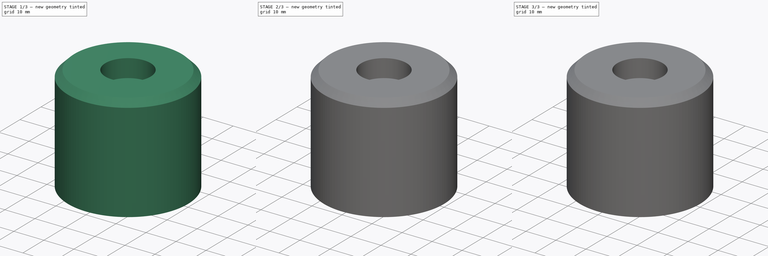
[diagram: build sequence overview — one tinted view per stage of 3, left to right]
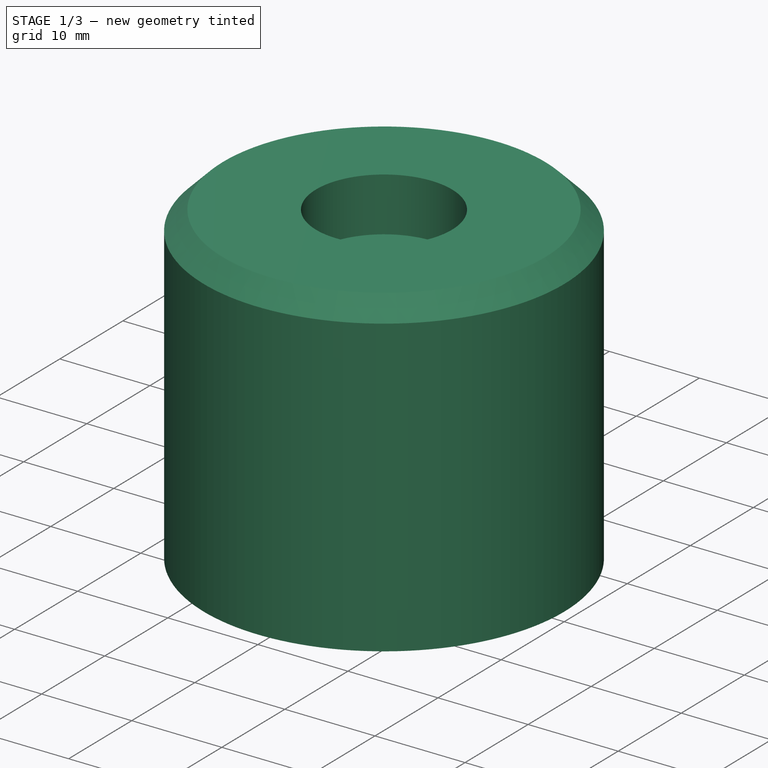
[diagram: stage 1 of 3 — iso view after this stage's code; geometry added in this stage tinted green]
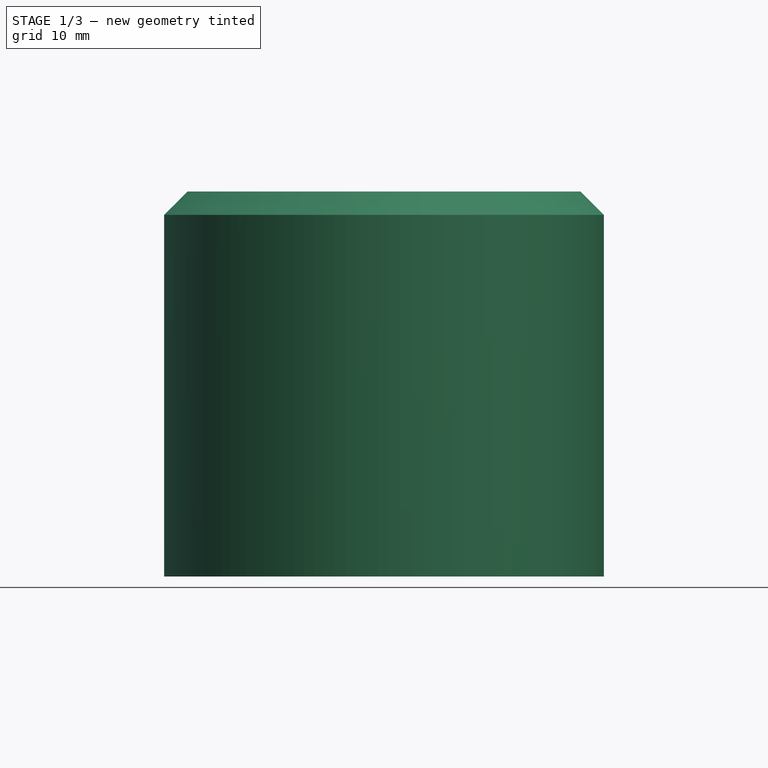
[diagram: stage 1 of 3 — front view after this stage's code; geometry added in this stage tinted green]
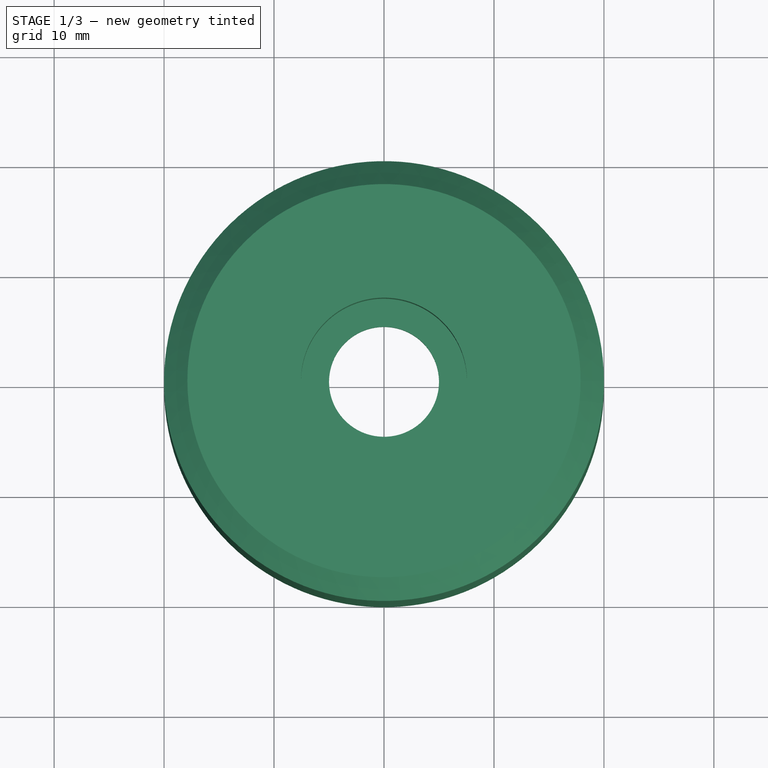
[diagram: stage 1 of 3 — top view after this stage's code; geometry added in this stage tinted green]
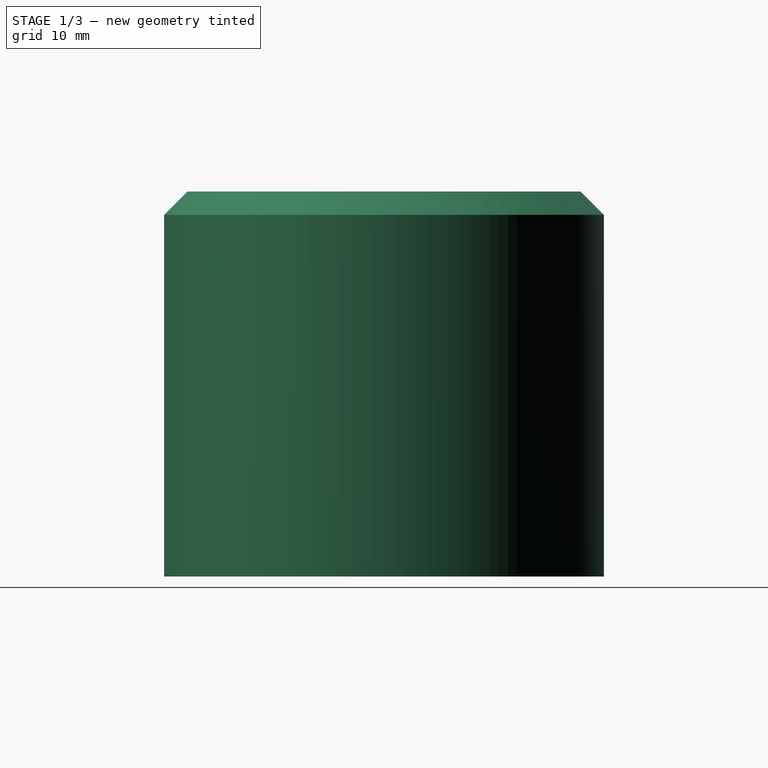
[diagram: stage 1 of 3 — right view after this stage's code; geometry added in this stage tinted green]
FCSTD DOCUMENT  (FreeCAD 0.19R24291 (Git))
Label: windDirectionSensorHousing
License: All rights reserved
LicenseURL: http://en.wikipedia.org/wiki/All_rights_reserved
objects: Sketcher::SketchObject×6, PartDesign::Pad×3, PartDesign::Pocket×2, PartDesign::Revolution×1, PartDesign::Plane×1, PartDesign::Chamfer×1, PartDesign::Body×1
note: 22 computed .brp shape members not serialized (recipe doc carries the construction recipe); baked Part::Feature solids carry a one-line shape summary decoded from their .brp

FEATURE [Sketcher::SketchObject] Sketch
  FullyConstrained = true
  MapMode = 5
  Placement = pos=(0,0,0) rot=(1,0,0;1.5708rad)
  Support = -> [XZ_Plane]
  sketch-geometry (16):
    g0: LineSegment StartX=5 StartY=29 StartZ=0 EndX=7.55 EndY=29 EndZ=0
    g1: LineSegment StartX=7.55 StartY=29 StartZ=0 EndX=7.55 EndY=35 EndZ=0
    g2: LineSegment StartX=7.55 StartY=35 StartZ=0 EndX=17.8787 EndY=35 EndZ=0
    g3: LineSegment StartX=17.8787 StartY=35 StartZ=0 EndX=20 EndY=32.8787 EndZ=0
    g4: LineSegment StartX=20 StartY=32.8787 StartZ=0 EndX=20 EndY=0 EndZ=0
    g5: LineSegment StartX=20 StartY=0 StartZ=0 EndX=18.5 EndY=0 EndZ=0
    g6: LineSegment StartX=18.5 StartY=0 StartZ=0 EndX=18.5 EndY=32.2574 EndZ=0
    g7: LineSegment StartX=18.5 StartY=32.2574 StartZ=0 EndX=17.2574 EndY=33.5 EndZ=0
    g8: LineSegment StartX=17.2574 StartY=33.5 StartZ=0 EndX=9.05 EndY=33.5 EndZ=0
    g9: LineSegment StartX=9.05 StartY=33.5 StartZ=0 EndX=9.05 EndY=27.5 EndZ=0
    g10: LineSegment StartX=9.05 StartY=27.5 StartZ=0 EndX=5 EndY=27.5 EndZ=0
    g11: LineSegment StartX=5 StartY=27.5 StartZ=0 EndX=5 EndY=29 EndZ=0
    g12: LineSegment StartX=7.55 StartY=29 StartZ=0 EndX=7.55 EndY=27.5 EndZ=0
    g13: LineSegment StartX=9.05 StartY=33.5 StartZ=0 EndX=7.55 EndY=33.5 EndZ=0
    g14: LineSegment StartX=9.05 StartY=33.5 StartZ=0 EndX=9.05 EndY=35 EndZ=0
    g15: LineSegment StartX=17.8787 StartY=32.8787 StartZ=0 EndX=18.9393 EndY=33.9393 EndZ=0
  constraints (49):
    c: Horizontal(g0)
    c: Coincident(g1,g0)
    c: Vertical(g1)
    c: Coincident(g2,g1)
    c: Horizontal(g2)
    c: Coincident(g3,g2)
    c: Coincident(g4,g3)
    c: Vertical(g4)
    c: Coincident(g5,g4)
    c: PointOnObject(g5,g-1)
    c: Horizontal(g5)
    c: Coincident(g6,g5)
    c: Vertical(g6)
    c: Coincident(g7,g6)
    c: Coincident(g8,g7)
    c: Horizontal(g8)
    c: Coincident(g9,g8)
    c: Vertical(g9)
    c: Coincident(g10,g9)
    c: Horizontal(g10)
    c: Coincident(g11,g10)
    c: Coincident(g11,g0)
    c: Vertical(g11)
    c: Parallel(g7,g3)
    c: DistanceY(g11,g11) = 1.5
    c: Coincident(g12,g0)
    c: PointOnObject(g12,g10)
    c: Vertical(g12)
    c: Coincident(g13,g8)
    c: PointOnObject(g13,g1)
    c: Horizontal(g13)
    c: Coincident(g14,g8)
    c: PointOnObject(g14,g2)
    c: Vertical(g14)
    c: PointOnObject(g15,g7)
    c: PointOnObject(g15,g3)
    c: Perpendicular(g3,g15)
    c: Equal(g12,g13)
    c: Equal(g13,g14)
    c: Equal(g14,g15)
    c: Equal(g15,g5)
    c: Angle(g7,g6) = 2.35619
    c: DistanceY(g1,g1) = 6
    c: DistanceX(g-1,g1) = 7.55
    c: DistanceX(g-1,g10) = 5
    c: DistanceX(g-1,g4) = 20
    c: DistanceY(g4,g2) = 35
    c: Distance(g3) = 3
    c: Distance(g3,g15) = 1.5
FEATURE [PartDesign::Revolution] Revolution
  Angle = 360
  Axis = (0,2e-16,1)
  Base = (0,0,0)
  Placement = pos=(0,0,0) rot=(1,0,0;1.5708rad)
  Profile = -> Sketch
  ReferenceAxis = -> Sketch [V_Axis]
  Reversed = true
FEATURE [Sketcher::SketchObject] Sketch001
  FullyConstrained = true
  MapMode = 5
  Placement = pos=(0,2.23e-14,33.5) rot=(1,0,0;3.14159rad)
  Support = -> [Revolution]
  sketch-geometry (20):
    g0: LineSegment StartX=-8.28 StartY=13.2 StartZ=0 EndX=-4.28 EndY=13.2 EndZ=0
    g1: LineSegment StartX=-4.28 StartY=13.2 StartZ=0 EndX=-4.28 EndY=9.2 EndZ=0
    g2: LineSegment StartX=-4.28 StartY=9.2 StartZ=0 EndX=-8.28 EndY=9.2 EndZ=0
    g3: LineSegment StartX=-8.28 StartY=9.2 StartZ=0 EndX=-8.28 EndY=13.2 EndZ=0
    g4: LineSegment StartX=6.82 StartY=13.2 StartZ=0 EndX=10.82 EndY=13.2 EndZ=0
    g5: LineSegment StartX=10.82 StartY=13.2 StartZ=0 EndX=10.82 EndY=9.2 EndZ=0
    g6: LineSegment StartX=10.82 StartY=9.2 StartZ=0 EndX=6.82 EndY=9.2 EndZ=0
    g7: LineSegment StartX=6.82 StartY=9.2 StartZ=0 EndX=6.82 EndY=13.2 EndZ=0
    g8: LineSegment StartX=-8.28 StartY=-9.2 StartZ=0 EndX=-4.28 EndY=-9.2 EndZ=0
    g9: LineSegment StartX=-4.28 StartY=-9.2 StartZ=0 EndX=-4.28 EndY=-13.2 EndZ=0
    g10: LineSegment StartX=-4.28 StartY=-13.2 StartZ=0 EndX=-8.28 EndY=-13.2 EndZ=0
    g11: LineSegment StartX=-8.28 StartY=-13.2 StartZ=0 EndX=-8.28 EndY=-9.2 EndZ=0
    g12: LineSegment StartX=6.82 StartY=-9.2 StartZ=0 EndX=10.82 EndY=-9.2 EndZ=0
    g13: LineSegment StartX=10.82 StartY=-9.2 StartZ=0 EndX=10.82 EndY=-13.2 EndZ=0
    g14: LineSegment StartX=10.82 StartY=-13.2 StartZ=0 EndX=6.82 EndY=-13.2 EndZ=0
    g15: LineSegment StartX=6.82 StartY=-13.2 StartZ=0 EndX=6.82 EndY=-9.2 EndZ=0
    g16: LineSegment StartX=-4.28 StartY=13.2 StartZ=0 EndX=6.82 EndY=13.2 EndZ=0
    g17: LineSegment StartX=10.82 StartY=9.2 StartZ=0 EndX=10.82 EndY=-9.2 EndZ=0
    g18: LineSegment StartX=6.82 StartY=-13.2 StartZ=0 EndX=-4.28 EndY=-13.2 EndZ=0
    g19: LineSegment StartX=-8.28 StartY=9.2 StartZ=0 EndX=-8.28 EndY=-9.2 EndZ=0
  constraints (55):
    c: Coincident(g0,g1)
    c: Coincident(g1,g2)
    c: Coincident(g2,g3)
    c: Coincident(g3,g0)
    c: Horizontal(g0)
    c: Horizontal(g2)
    c: Vertical(g1)
    c: Vertical(g3)
    c: Equal(g0,g1)
    c: DistanceX(g0,g0) = 4
    c: Coincident(g4,g5)
    c: Coincident(g5,g6)
    c: Coincident(g6,g7)
    c: Coincident(g7,g4)
    c: Horizontal(g4)
    c: Horizontal(g6)
    c: Vertical(g5)
    c: Vertical(g7)
    c: Equal(g4,g5)
    c: Equal(g0,g4) = 4
    c: Coincident(g8,g9)
    c: Coincident(g9,g10)
    c: Coincident(g10,g11)
    c: Coincident(g11,g8)
    c: Horizontal(g8)
    c: Horizontal(g10)
    c: Vertical(g9)
    c: Vertical(g11)
    c: Equal(g8,g9)
    c: Equal(g0,g8) = 4
    c: Coincident(g12,g13)
    c: Coincident(g13,g14)
    c: Coincident(g14,g15)
    c: Coincident(g15,g12)
    c: Horizontal(g12)
    c: Horizontal(g14)
    c: Vertical(g13)
    c: Vertical(g15)
    c: Equal(g12,g13)
    c: Equal(g0,g12) = 4
    c: Coincident(g16,g0)
    c: Coincident(g16,g4)
    c: Horizontal(g16)
    c: Coincident(g17,g5)
    c: Coincident(g17,g12)
    c: Coincident(g18,g14)
    c: Coincident(g18,g9)
    c: Horizontal(g18)
    c: Coincident(g19,g2)
    c: Coincident(g19,g8)
    c: Vertical(g19)
    c: DistanceX(g16,g16) = 11.1
    c: DistanceY(g17,g17) = 18.4
    c: Symmetric(g5,g12,g-1)
    c: DistanceX(g1,g-1) = 4.28
FEATURE [PartDesign::Pad] Pad
  BaseFeature = -> Revolution
  Direction = (1,1,1)
  Length = 17.5
  Length2 = 100
  Placement = pos=(0,0,0) rot=(1,0,0;1.5708rad)
  Profile = -> Sketch001
  Type = 0
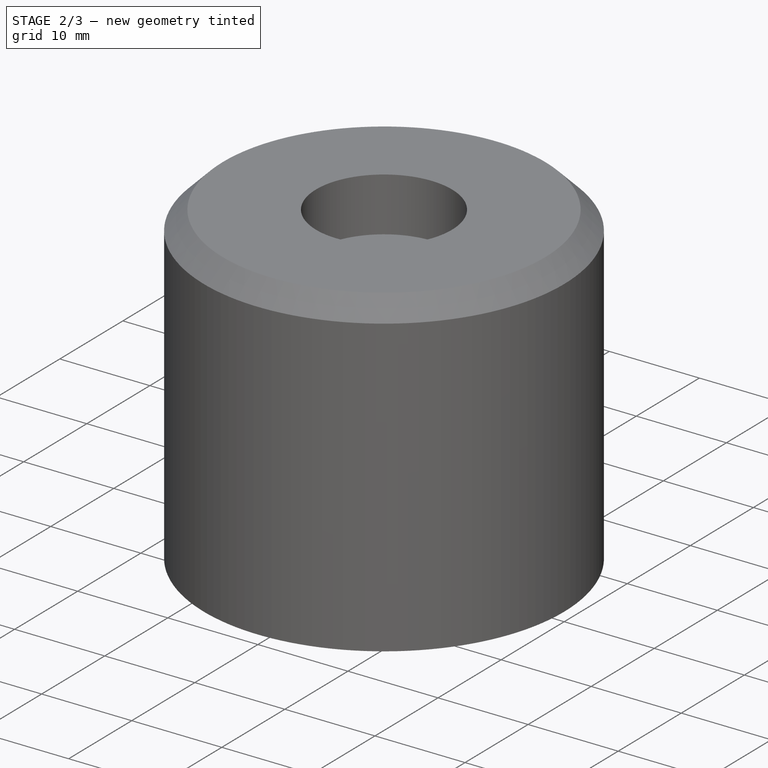
[diagram: stage 2 of 3 — iso view after this stage's code; geometry added in this stage tinted green]
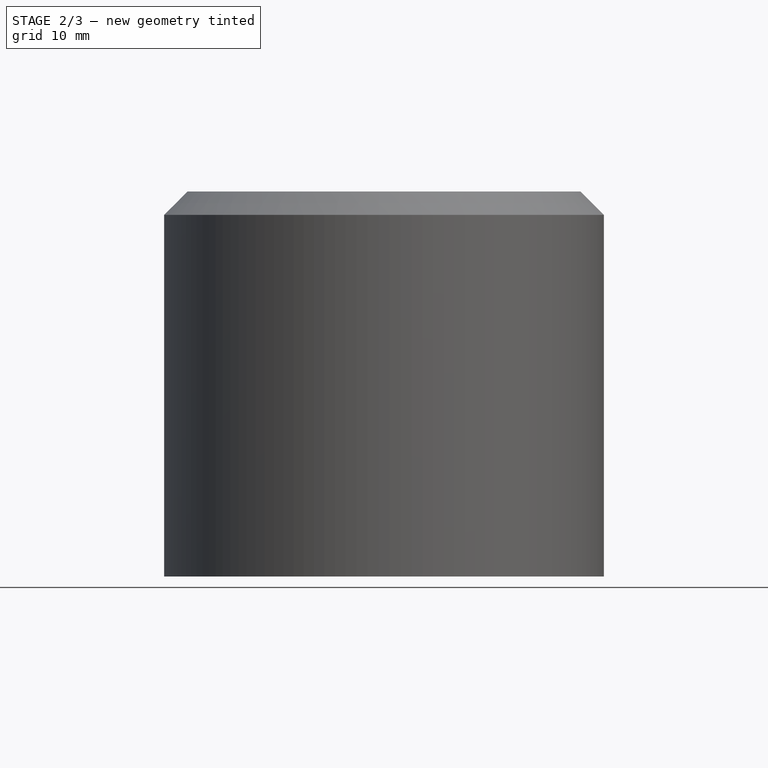
[diagram: stage 2 of 3 — front view after this stage's code; geometry added in this stage tinted green]
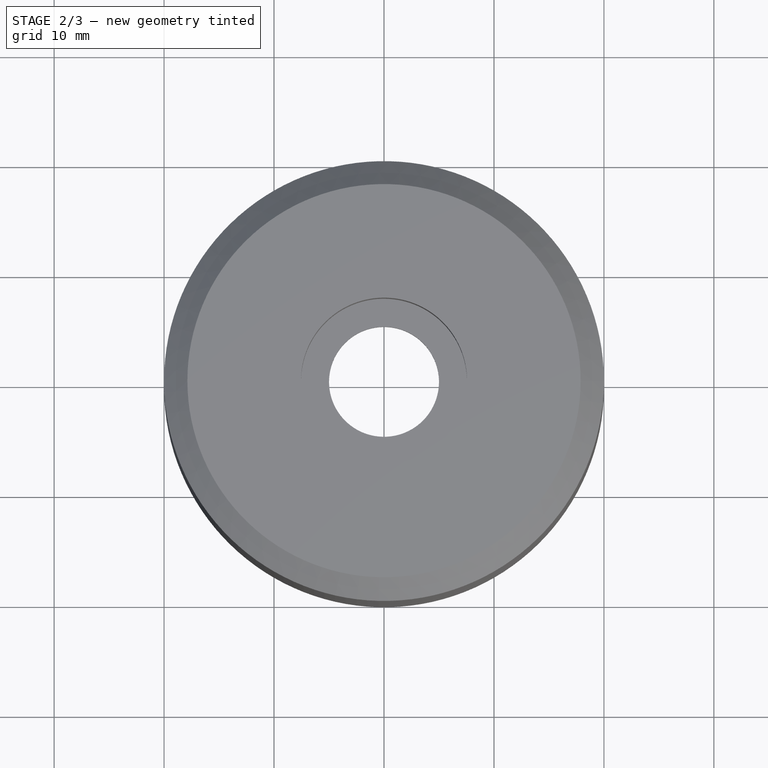
[diagram: stage 2 of 3 — top view after this stage's code; geometry added in this stage tinted green]
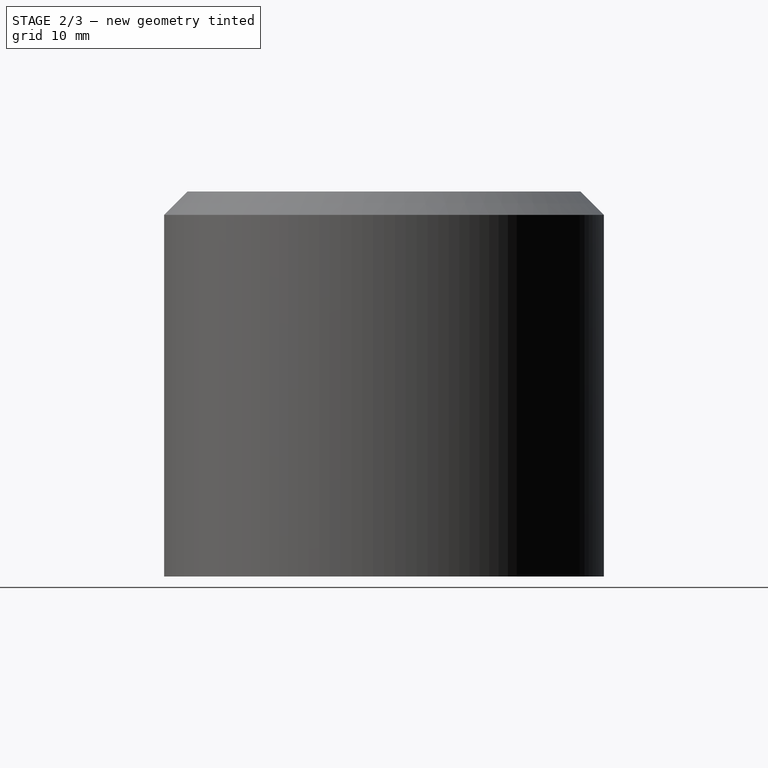
[diagram: stage 2 of 3 — right view after this stage's code; geometry added in this stage tinted green]
FEATURE [Sketcher::SketchObject] Sketch002
  FullyConstrained = true
  MapMode = 5
  Placement = pos=(0,7.1e-15,16) rot=(1,0,0;3.14159rad)
  Support = -> [Pad]
  sketch-geometry (20):
    g0: LineSegment StartX=-4.28 StartY=9.2 StartZ=0 EndX=-6.28 EndY=9.2 EndZ=0
    g1: LineSegment StartX=-6.28 StartY=9.2 StartZ=0 EndX=-6.28 EndY=11.2 EndZ=0
    g2: LineSegment StartX=-6.28 StartY=11.2 StartZ=0 EndX=-4.28 EndY=11.2 EndZ=0
    g3: LineSegment StartX=-4.28 StartY=11.2 StartZ=0 EndX=-4.28 EndY=9.2 EndZ=0
    g4: LineSegment StartX=-4.28 StartY=-11.2 StartZ=0 EndX=-6.28 EndY=-11.2 EndZ=0
    g5: LineSegment StartX=-6.28 StartY=-11.2 StartZ=0 EndX=-6.28 EndY=-9.2 EndZ=0
    g6: LineSegment StartX=-6.28 StartY=-9.2 StartZ=0 EndX=-4.28 EndY=-9.2 EndZ=0
    g7: LineSegment StartX=-4.28 StartY=-9.2 StartZ=0 EndX=-4.28 EndY=-11.2 EndZ=0
    g8: LineSegment StartX=8.82 StartY=9.2 StartZ=0 EndX=6.82 EndY=9.2 EndZ=0
    g9: LineSegment StartX=6.82 StartY=9.2 StartZ=0 EndX=6.82 EndY=11.2 EndZ=0
    g10: LineSegment StartX=6.82 StartY=11.2 StartZ=0 EndX=8.82 EndY=11.2 EndZ=0
    g11: LineSegment StartX=8.82 StartY=11.2 StartZ=0 EndX=8.82 EndY=9.2 EndZ=0
    g12: LineSegment StartX=8.82 StartY=-11.2 StartZ=0 EndX=6.82 EndY=-11.2 EndZ=0
    g13: LineSegment StartX=6.82 StartY=-11.2 StartZ=0 EndX=6.82 EndY=-9.2 EndZ=0
    g14: LineSegment StartX=6.82 StartY=-9.2 StartZ=0 EndX=8.82 EndY=-9.2 EndZ=0
    g15: LineSegment StartX=8.82 StartY=-9.2 StartZ=0 EndX=8.82 EndY=-11.2 EndZ=0
    g16: LineSegment StartX=-4.28 StartY=9.2 StartZ=0 EndX=-4.28 EndY=-9.2 EndZ=0
    g17: LineSegment StartX=-4.28 StartY=9.2 StartZ=0 EndX=6.82 EndY=9.2 EndZ=0
    g18: LineSegment StartX=6.82 StartY=9.2 StartZ=0 EndX=6.82 EndY=-9.2 EndZ=0
    g19: LineSegment StartX=6.82 StartY=-9.2 StartZ=0 EndX=-4.28 EndY=-9.2 EndZ=0
  constraints (55):
    c: Coincident(g0,g1)
    c: Coincident(g1,g2)
    c: Coincident(g2,g3)
    c: Coincident(g3,g0)
    c: Horizontal(g0)
    c: Horizontal(g2)
    c: Vertical(g1)
    c: Vertical(g3)
    c: Equal(g2,g3)
    c: DistanceX(g2,g2) = 2
    c: Coincident(g4,g5)
    c: Coincident(g5,g6)
    c: Coincident(g6,g7)
    c: Coincident(g7,g4)
    c: Horizontal(g4)
    c: Horizontal(g6)
    c: Vertical(g5)
    c: Vertical(g7)
    c: Equal(g6,g7)
    c: Equal(g2,g6) = 2
    c: Coincident(g8,g9)
    c: Coincident(g9,g10)
    c: Coincident(g10,g11)
    c: Coincident(g11,g8)
    c: Horizontal(g8)
    c: Horizontal(g10)
    c: Vertical(g9)
    c: Vertical(g11)
    c: Equal(g10,g11)
    c: Equal(g2,g10) = 2
    c: Coincident(g12,g13)
    c: Coincident(g13,g14)
    c: Coincident(g14,g15)
    c: Coincident(g15,g12)
    c: Horizontal(g12)
    c: Horizontal(g14)
    c: Vertical(g13)
    c: Vertical(g15)
    c: Equal(g14,g15)
    c: Equal(g2,g14) = 2
    c: Coincident(g16,g0)
    c: Coincident(g16,g6)
    c: Vertical(g16)
    c: Coincident(g17,g0)
    c: Coincident(g17,g8)
    c: Horizontal(g17)
    c: Coincident(g18,g8)
    c: Coincident(g18,g13)
    c: Coincident(g19,g13)
    c: Horizontal(g19)
    c: Coincident(g19,g6)
    c: DistanceY(g18,g18) = 18.4
    c: DistanceX(g17,g17) = 11.1
    c: Symmetric(g8,g13,g-1)
    c: DistanceX(g0,g-1) = 4.28
FEATURE [PartDesign::Pocket] Pocket
  BaseFeature = -> Pad
  Length = 2
  Length2 = 100
  Placement = pos=(0,0,0) rot=(1,0,0;1.5708rad)
  Profile = -> Sketch002
  Type = 0
FEATURE [Sketcher::SketchObject] Sketch003
  FullyConstrained = true
  MapMode = 5
  Placement = pos=(0,1.42e-14,16) rot=(1,0,0;3.14159rad)
  Support = -> [Pocket]
  sketch-geometry (20):
    g0: LineSegment StartX=-8.28 StartY=13.2 StartZ=0 EndX=-4.28 EndY=13.2 EndZ=0
    g1: LineSegment StartX=-4.28 StartY=13.2 StartZ=0 EndX=-4.28 EndY=9.2 EndZ=0
    g2: LineSegment StartX=-4.28 StartY=9.2 StartZ=0 EndX=-8.28 EndY=9.2 EndZ=0
    g3: LineSegment StartX=-8.28 StartY=9.2 StartZ=0 EndX=-8.28 EndY=13.2 EndZ=0
    g4: LineSegment StartX=6.82 StartY=13.2 StartZ=0 EndX=10.82 EndY=13.2 EndZ=0
    g5: LineSegment StartX=10.82 StartY=13.2 StartZ=0 EndX=10.82 EndY=9.2 EndZ=0
    g6: LineSegment StartX=10.82 StartY=9.2 StartZ=0 EndX=6.82 EndY=9.2 EndZ=0
    g7: LineSegment StartX=6.82 StartY=9.2 StartZ=0 EndX=6.82 EndY=13.2 EndZ=0
    g8: LineSegment StartX=-8.28 StartY=-9.2 StartZ=0 EndX=-4.28 EndY=-9.2 EndZ=0
    g9: LineSegment StartX=-4.28 StartY=-9.2 StartZ=0 EndX=-4.28 EndY=-13.2 EndZ=0
    g10: LineSegment StartX=-4.28 StartY=-13.2 StartZ=0 EndX=-8.28 EndY=-13.2 EndZ=0
    g11: LineSegment StartX=-8.28 StartY=-13.2 StartZ=0 EndX=-8.28 EndY=-9.2 EndZ=0
    g12: LineSegment StartX=6.82 StartY=-9.2 StartZ=0 EndX=10.82 EndY=-9.2 EndZ=0
    g13: LineSegment StartX=10.82 StartY=-9.2 StartZ=0 EndX=10.82 EndY=-13.2 EndZ=0
    g14: LineSegment StartX=10.82 StartY=-13.2 StartZ=0 EndX=6.82 EndY=-13.2 EndZ=0
    g15: LineSegment StartX=6.82 StartY=-13.2 StartZ=0 EndX=6.82 EndY=-9.2 EndZ=0
    g16: LineSegment StartX=-4.28 StartY=9.2 StartZ=0 EndX=-4.28 EndY=-9.2 EndZ=0
    g17: LineSegment StartX=-4.28 StartY=9.2 StartZ=0 EndX=6.82 EndY=9.2 EndZ=0
    g18: LineSegment StartX=6.82 StartY=9.2 StartZ=0 EndX=6.82 EndY=-9.2 EndZ=0
    g19: LineSegment StartX=6.82 StartY=-9.2 StartZ=0 EndX=-4.28 EndY=-9.2 EndZ=0
  constraints (55):
    c: Coincident(g0,g1)
    c: Coincident(g1,g2)
    c: Coincident(g2,g3)
    c: Coincident(g3,g0)
    c: Horizontal(g0)
    c: Horizontal(g2)
    c: Vertical(g1)
    c: Vertical(g3)
    c: Equal(g0,g1)
    c: DistanceX(g0,g0) = 4
    c: Coincident(g4,g5)
    c: Coincident(g5,g6)
    c: Coincident(g6,g7)
    c: Coincident(g7,g4)
    c: Horizontal(g4)
    c: Horizontal(g6)
    c: Vertical(g5)
    c: Vertical(g7)
    c: Equal(g4,g5)
    c: Equal(g0,g4) = 4
    c: Coincident(g8,g9)
    c: Coincident(g9,g10)
    c: Coincident(g10,g11)
    c: Coincident(g11,g8)
    c: Horizontal(g8)
    c: Horizontal(g10)
    c: Vertical(g9)
    c: Vertical(g11)
    c: Equal(g8,g9)
    c: Equal(g0,g8) = 4
    c: Coincident(g12,g13)
    c: Coincident(g13,g14)
    c: Coincident(g14,g15)
    c: Coincident(g15,g12)
    c: Horizontal(g12)
    c: Horizontal(g14)
    c: Vertical(g13)
    c: Vertical(g15)
    c: Equal(g12,g13)
    c: Equal(g0,g12) = 4
    c: Coincident(g16,g1)
    c: Coincident(g16,g8)
    c: Vertical(g16)
    c: Coincident(g17,g1)
    c: Coincident(g17,g6)
    c: Horizontal(g17)
    c: Coincident(g18,g6)
    c: Coincident(g18,g12)
    c: Coincident(g19,g12)
    c: Coincident(g19,g8)
    c: Horizontal(g19)
    c: Symmetric(g6,g12,g-1)
    c: DistanceY(g18,g18) = 18.4
    c: DistanceX(g17,g17) = 11.1
    c: DistanceX(g1,g-1) = 4.28
FEATURE [PartDesign::Pad] Pad001
  BaseFeature = -> Pocket
  Direction = (1,1,1)
  Length = 2
  Length2 = 100
  Placement = pos=(0,0,0) rot=(1,0,0;1.5708rad)
  Profile = -> Sketch003
  Type = 0
FEATURE [PartDesign::Plane] DatumPlane
  AttachmentOffset = pos=(0,0,5) rot=(0,0,1;0rad)
  Length = 60
  MapMode = 5
  Placement = pos=(0,1e-14,5) rot=(0,0,1;3.14159rad)
  ResizeMode = 0
  Support = -> [Pad001]
  Width = 60
FEATURE [Sketcher::SketchObject] Sketch004
  FullyConstrained = true
  MapMode = 5
  Placement = pos=(0,1e-14,5) rot=(0,0,1;3.14159rad)
  Support = -> [DatumPlane]
  sketch-geometry (12):
    g0: ArcOfCircle CenterX=0 CenterY=0 CenterZ=0 NormalX=0 NormalY=0 NormalZ=1 AngleXU=0 Radius=18.5 StartAngle=1.38046 EndAngle=1.76113
    g1: LineSegment StartX=-3.5 StartY=18.1659 StartZ=0 EndX=-3.5 EndY=11.1659 EndZ=0
    g2: LineSegment StartX=-3.5 StartY=11.1659 StartZ=0 EndX=3.5 EndY=11.1659 EndZ=0
    g3: LineSegment StartX=3.5 StartY=11.1659 StartZ=0 EndX=3.5 EndY=18.1659 EndZ=0
    g4: LineSegment StartX=-18.1659 StartY=3.5 StartZ=0 EndX=-11.1659 EndY=3.5 EndZ=0
    g5: LineSegment StartX=-11.1659 StartY=3.5 StartZ=0 EndX=-11.1659 EndY=-3.5 EndZ=0
    g6: LineSegment StartX=-11.1659 StartY=-3.5 StartZ=0 EndX=-18.1659 EndY=-3.5 EndZ=0
    g7: LineSegment StartX=-3.5 StartY=-18.1659 StartZ=0 EndX=-3.5 EndY=-11.1659 EndZ=0
    g8: LineSegment StartX=-3.5 StartY=-11.1659 StartZ=0 EndX=3.5 EndY=-11.1659 EndZ=0
    g9: LineSegment StartX=3.5 StartY=-11.1659 StartZ=0 EndX=3.5 EndY=-18.1659 EndZ=0
    g10: ArcOfCircle CenterX=0 CenterY=0 CenterZ=0 NormalX=0 NormalY=0 NormalZ=1 AngleXU=0 Radius=18.5 StartAngle=2.95126 EndAngle=3.33193
    g11: ArcOfCircle CenterX=0 CenterY=0 CenterZ=0 NormalX=0 NormalY=0 NormalZ=1 AngleXU=0 Radius=18.5 StartAngle=4.52205 EndAngle=4.90273
  constraints (38):
    c: Coincident(g0,g-1)
    c: Radius(g0) = 18.5
    c: Vertical(g1)
    c: Coincident(g2,g1)
    c: Horizontal(g2)
    c: Coincident(g3,g2)
    c: Vertical(g3)
    c: Horizontal(g4)
    c: Coincident(g5,g4)
    c: Vertical(g5)
    c: Coincident(g6,g5)
    c: PointOnObject(g6,g0)
    c: Horizontal(g6)
    c: PointOnObject(g7,g0)
    c: Vertical(g7)
    c: Coincident(g8,g7)
    c: Horizontal(g8)
    c: Coincident(g9,g8)
    c: Vertical(g9)
    c: Equal(g2,g1)
    c: Equal(g1,g3)
    c: Equal(g3,g4)
    c: Equal(g4,g6)
    c: Equal(g6,g5)
    c: Equal(g5,g7)
    c: Equal(g7,g8)
    c: Equal(g8,g9)
    c: DistanceX(g2,g2) = 7
    c: Coincident(g0,g3)
    c: Coincident(g11,g9)
    c: Equal(g0,g10)
    c: Coincident(g0,g1)
    c: Coincident(g10,g4)
    c: Coincident(g0,g10)
    c: Equal(g10,g11)
    c: PointOnObject(g10,g6)
    c: PointOnObject(g11,g7)
    c: Coincident(g10,g11)
FEATURE [PartDesign::Pad] Pad002
  BaseFeature = -> Pad001
  Direction = (1,1,1)
  Length = 12
  Length2 = 100
  Placement = pos=(0,0,0) rot=(1,0,0;1.5708rad)
  Profile = -> Sketch004
  Type = 0
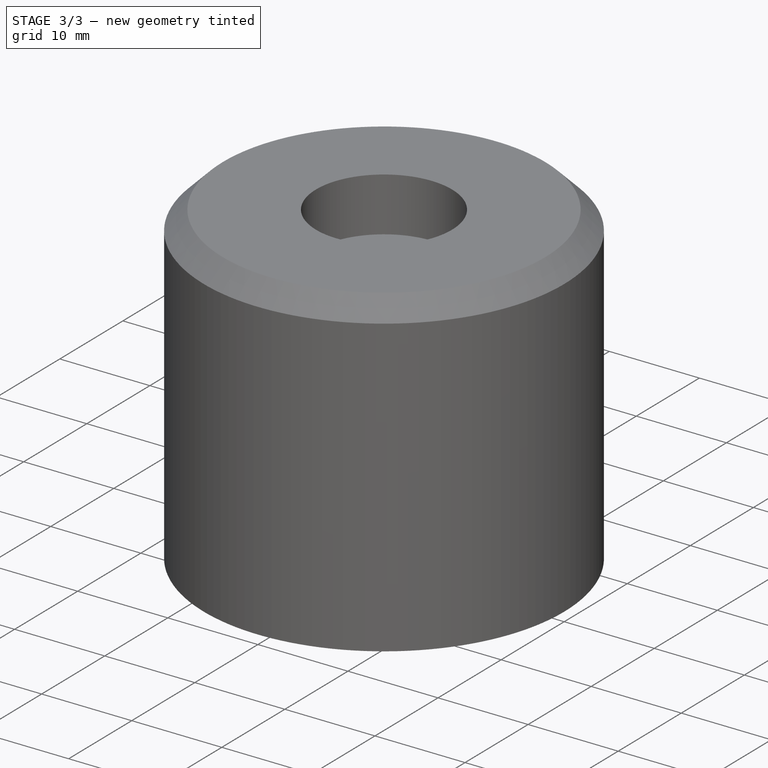
[diagram: stage 3 of 3 — iso view after this stage's code; geometry added in this stage tinted green]
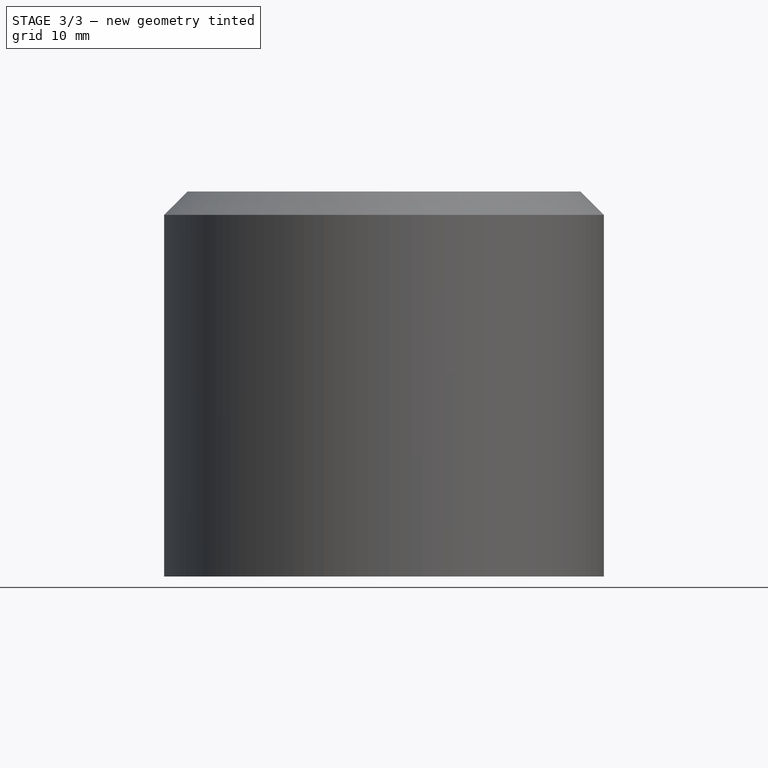
[diagram: stage 3 of 3 — front view after this stage's code; geometry added in this stage tinted green]
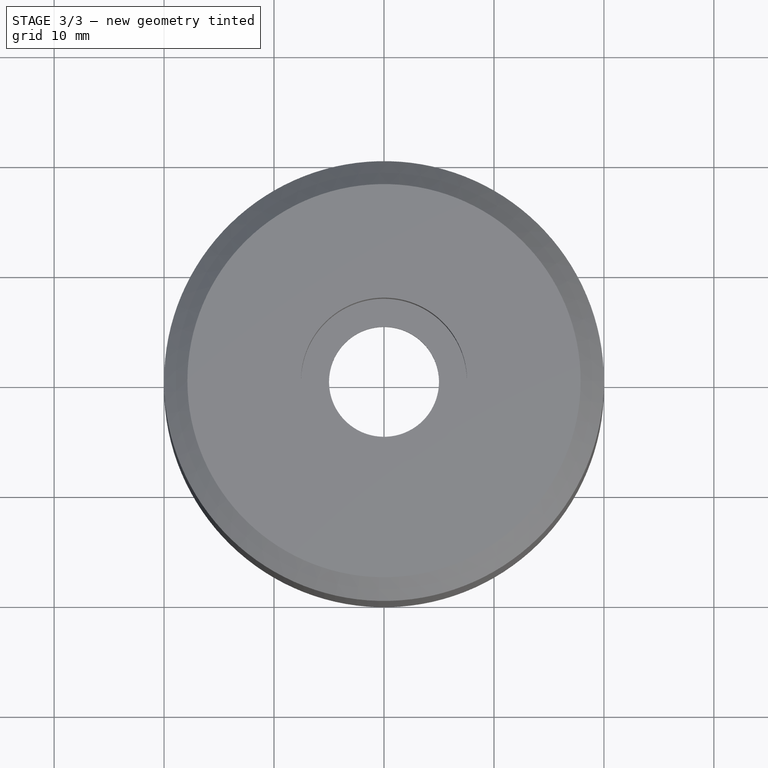
[diagram: stage 3 of 3 — top view after this stage's code; geometry added in this stage tinted green]
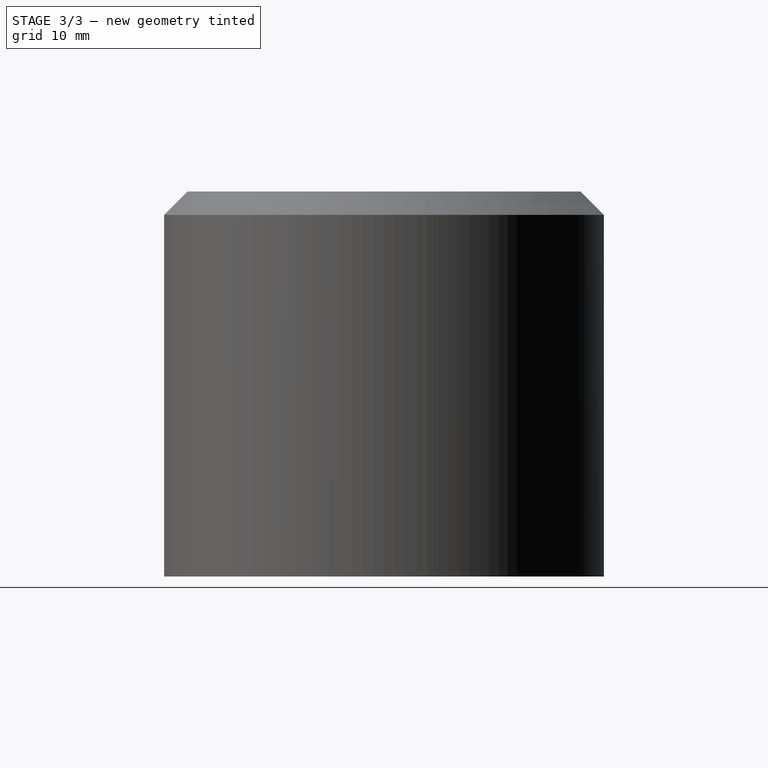
[diagram: stage 3 of 3 — right view after this stage's code; geometry added in this stage tinted green]
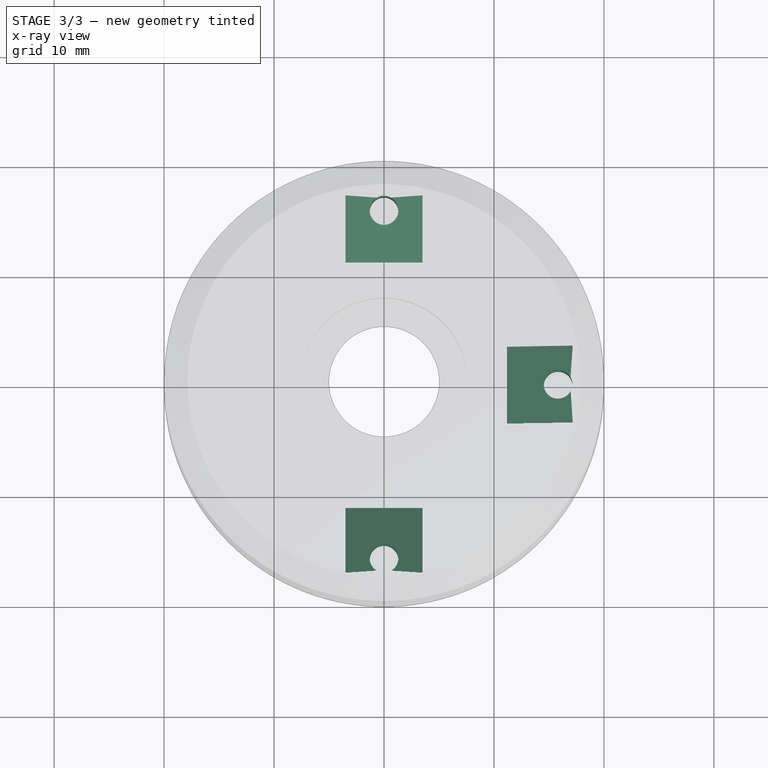
[diagram: stage 3 of 3 — x-ray composite at the top view; earlier geometry ghosted, this stage's added geometry solid]
FEATURE [PartDesign::Chamfer] Chamfer
  Angle = 45
  Base = -> Pad002 [Edge178,Edge164,Edge171]
  BaseFeature = -> Pad002
  ChamferType = 0
  FlipDirection = false
  Placement = pos=(0,0,0) rot=(1,0,0;1.5708rad)
  Size = 6
  Size2 = 1
  SupportTransform = false
FEATURE [Sketcher::SketchObject] Sketch005
  FullyConstrained = true
  MapMode = 5
  Placement = pos=(0,1.24e-14,5) rot=(1,0,0;3.14159rad)
  Support = -> [Chamfer]
  sketch-geometry (6):
    g0: Circle CenterX=0 CenterY=15.83 CenterZ=0 NormalX=0 NormalY=0 NormalZ=1 AngleXU=0 Radius=1.3
    g1: Circle CenterX=15.83 CenterY=0 CenterZ=0 NormalX=0 NormalY=0 NormalZ=1 AngleXU=0 Radius=1.3
    g2: Circle CenterX=0 CenterY=-15.83 CenterZ=0 NormalX=0 NormalY=0 NormalZ=1 AngleXU=0 Radius=1.3
    g3: LineSegment StartX=0 StartY=15.83 StartZ=0 EndX=0 EndY=0 EndZ=0
    g4: LineSegment StartX=0 StartY=0 StartZ=0 EndX=15.83 EndY=0 EndZ=0
    g5: LineSegment StartX=0 StartY=0 StartZ=0 EndX=0 EndY=-15.83 EndZ=0
  constraints (15):
    c: PointOnObject(g0,g-2)
    c: PointOnObject(g1,g-1)
    c: PointOnObject(g2,g-2)
    c: Coincident(g3,g0)
    c: Coincident(g3,g-1)
    c: Coincident(g4,g-1)
    c: Coincident(g4,g1)
    c: Coincident(g5,g-1)
    c: Coincident(g5,g2)
    c: Equal(g3,g4)
    c: Equal(g4,g5)
    c: DistanceY(g3,g3) = 15.83
    c: Equal(g0,g1)
    c: Equal(g1,g2)
    c: Radius(g0) = 1.3
FEATURE [PartDesign::Pocket] Pocket001
  BaseFeature = -> Chamfer
  Length = 12
  Length2 = 100
  Placement = pos=(0,0,0) rot=(1,0,0;1.5708rad)
  Profile = -> Sketch005
  Type = 0
FEATURE [PartDesign::Body] Body
  Group = -> [Sketch,Revolution,Sketch001,Pad,Sketch002,Pocket,Sketch003,Pad001,DatumPlane,Sketch004,Pad002,Chamfer,Sketch005,Pocket001]
  Origin = -> Origin
  Tip = -> Pocket001
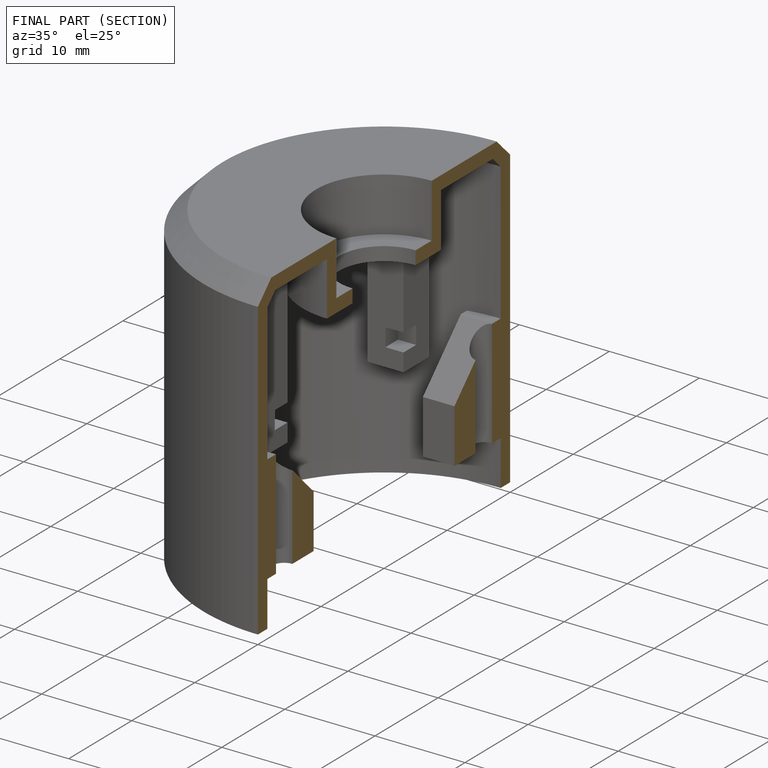
[diagram: finished part — half-section view (interior)]
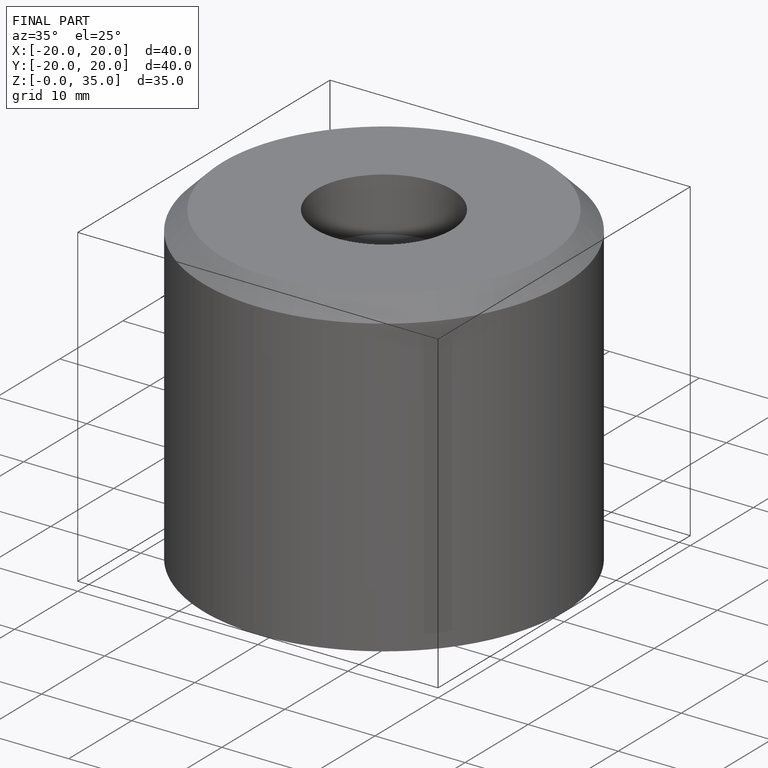
[diagram: finished part — iso view with bounding-box wireframe]
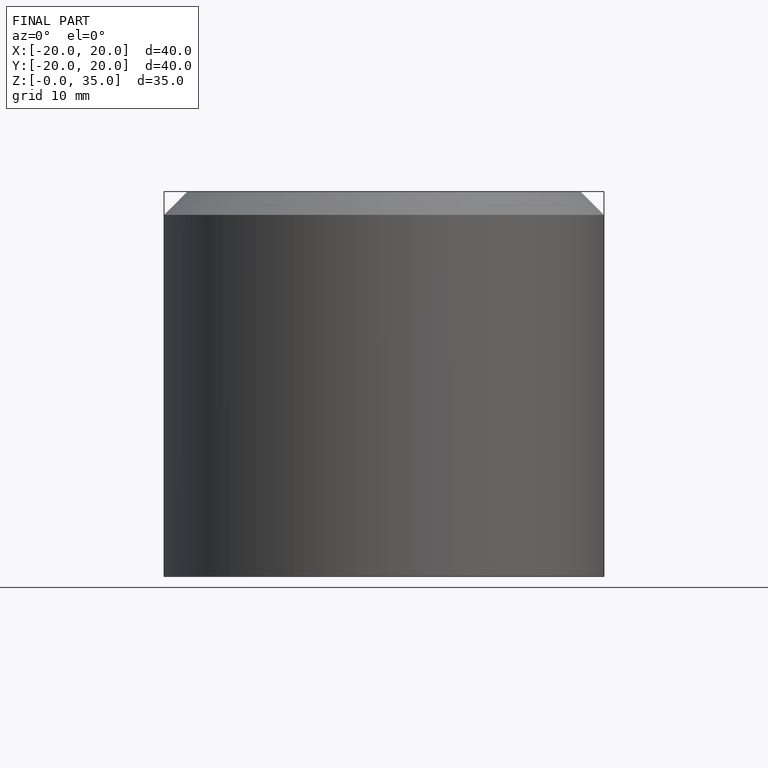
[diagram: finished part — front view with bounding-box wireframe]
